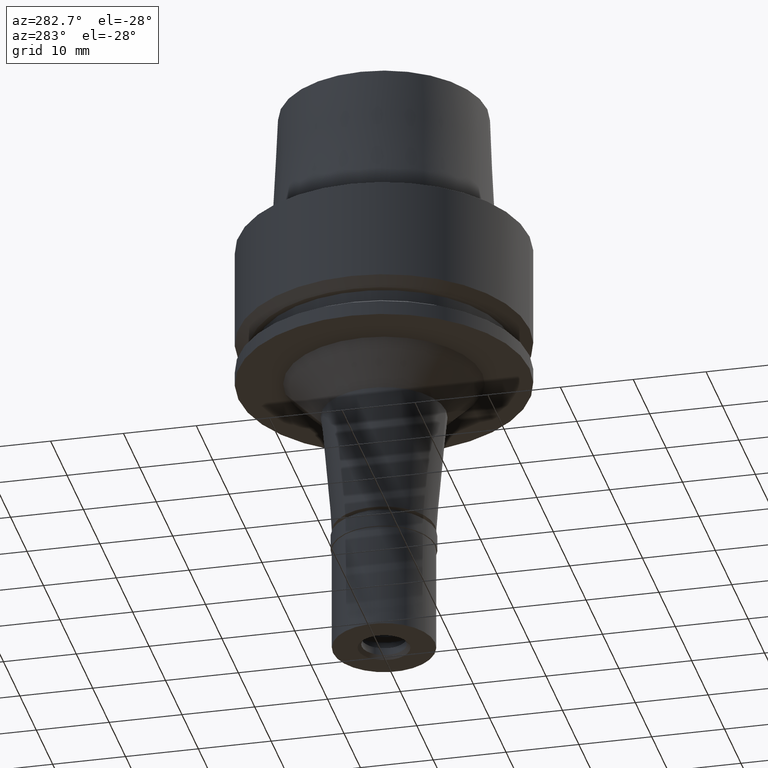
[diagram: clean part render]
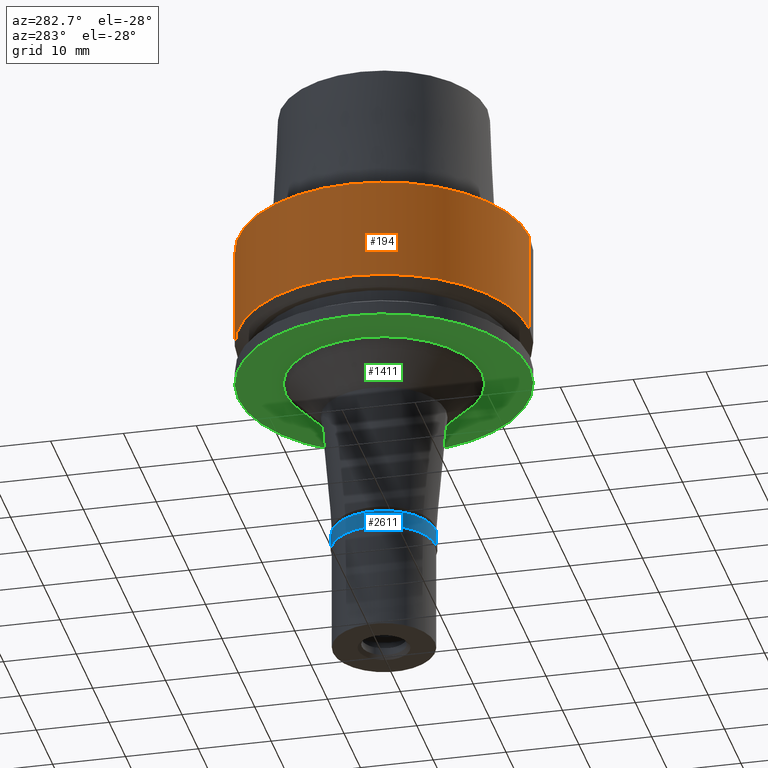
[diagram: same view with three faces highlighted in distinct colors, each labeled with its STEP entity id]
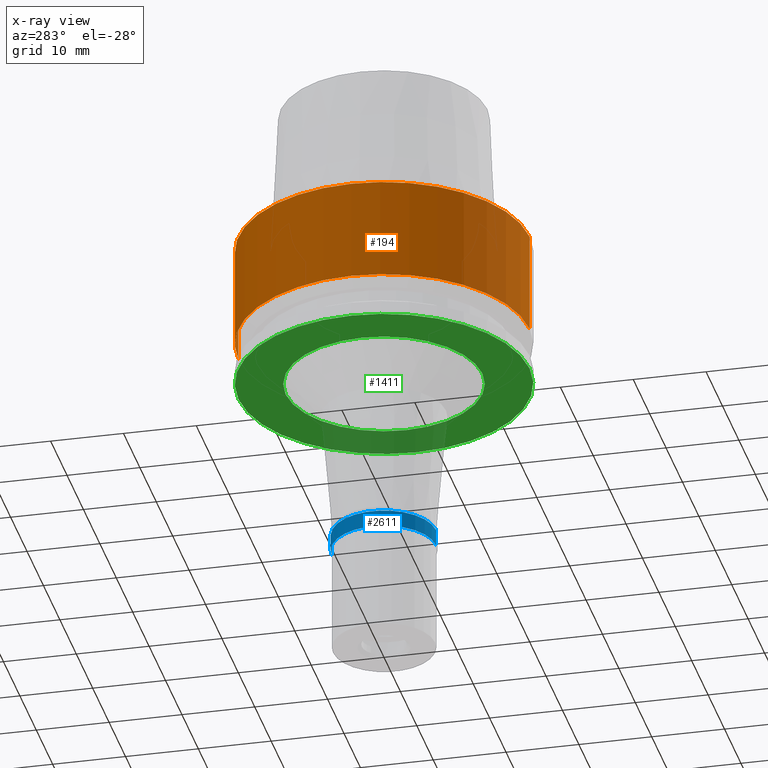
[diagram: x-ray of the same camera — body ghosted, the three highlighted faces saturated]
A machine part, auxiliary view with three faces highlighted in distinct colors.
The next image is the same camera in x-ray (body ghosted, the three faces saturated) — at least one of them is partly hidden behind the body in this view.
Their STEP definitions:

[orange] entity #194 — the highlighted cylindrical surface (partial cylindrical patch) has radius 20 mm, axis along (0, 0, 1).
#26 = DIRECTION ( 'NONE',  ( 0.0000000000000000000, 1.000000000000000000, 0.0000000000000000000 ) ) ;
#112 = LINE ( 'NONE', #907, #728 ) ;
#121 = LINE ( 'NONE', #2408, #144 ) ;
#144 = VECTOR ( 'NONE', #2426, 1000.000000000000000 ) ;
#181 = EDGE_CURVE ( 'NONE', #1096, #1019, #112, .T. ) ;
#194 = ADVANCED_FACE ( 'NONE', ( #685 ), #480, .T. ) ;
#330 = EDGE_CURVE ( 'NONE', #2124, #1096, #602, .T. ) ;
#343 = DIRECTION ( 'NONE',  ( 0.0000000000000000000, 1.000000000000000000, 0.0000000000000000000 ) ) ;
#480 = CYLINDRICAL_SURFACE ( 'NONE', #1264, 20.00000000000000000 ) ;
#517 = VERTEX_POINT ( 'NONE', #807 ) ;
#602 = CIRCLE ( 'NONE', #2467, 20.00000000000000000 ) ;
#685 = FACE_OUTER_BOUND ( 'NONE', #1997, .T. ) ;
#728 = VECTOR ( 'NONE', #1729, 1000.000000000000000 ) ;
#798 = DIRECTION ( 'NONE',  ( 0.0000000000000000000, 0.0000000000000000000, 1.000000000000000000 ) ) ;
#807 = CARTESIAN_POINT ( 'NONE',  ( 0.0000000000000000000, -20.00000000000000000, -13.97927405538000123 ) ) ;
#871 = CARTESIAN_POINT ( 'NONE',  ( 0.0000000000000000000, -20.00000000000000000, 4.973799150320999175E-14 ) ) ;
#907 = CARTESIAN_POINT ( 'NONE',  ( 0.0000000000000000000, 20.00000000000000000, 2.842170943039999687E-14 ) ) ;
#948 = CARTESIAN_POINT ( 'NONE',  ( 0.0000000000000000000, 20.00000000000000000, -13.97927405538000123 ) ) ;
#972 = CARTESIAN_POINT ( 'NONE',  ( 0.0000000000000000000, 0.0000000000000000000, -59.79999999999999716 ) ) ;
#1019 = VERTEX_POINT ( 'NONE', #948 ) ;
#1096 = VERTEX_POINT ( 'NONE', #2164 ) ;
#1159 = EDGE_CURVE ( 'NONE', #1019, #517, #2449, .T. ) ;
#1185 = ORIENTED_EDGE ( 'NONE', *, *, #330, .T. ) ;
#1189 = ORIENTED_EDGE ( 'NONE', *, *, #181, .T. ) ;
#1193 = DIRECTION ( 'NONE',  ( 0.0000000000000000000, 0.0000000000000000000, 1.000000000000000000 ) ) ;
#1264 = AXIS2_PLACEMENT_3D ( 'NONE', #972, #1193, #343 ) ;
#1360 = DIRECTION ( 'NONE',  ( 0.0000000000000000000, -1.000000000000000000, 0.0000000000000000000 ) ) ;
#1370 = ORIENTED_EDGE ( 'NONE', *, *, #1159, .T. ) ;
#1477 = EDGE_CURVE ( 'NONE', #2124, #517, #121, .T. ) ;
#1500 = AXIS2_PLACEMENT_3D ( 'NONE', #2316, #798, #26 ) ;
#1537 = CARTESIAN_POINT ( 'NONE',  ( 0.0000000000000000000, 0.0000000000000000000, 4.973799150320999175E-14 ) ) ;
#1729 = DIRECTION ( 'NONE',  ( 0.0000000000000000000, 2.439758400998999725E-14, -1.000000000000000000 ) ) ;
#1785 = DIRECTION ( 'NONE',  ( 0.0000000000000000000, 0.0000000000000000000, -1.000000000000000000 ) ) ;
#1997 = EDGE_LOOP ( 'NONE', ( #1370, #2157, #1185, #1189 ) ) ;
#2124 = VERTEX_POINT ( 'NONE', #871 ) ;
#2157 = ORIENTED_EDGE ( 'NONE', *, *, #1477, .F. ) ;
#2164 = CARTESIAN_POINT ( 'NONE',  ( 0.0000000000000000000, 20.00000000000000000, 4.973799150320999175E-14 ) ) ;
#2316 = CARTESIAN_POINT ( 'NONE',  ( 0.0000000000000000000, 0.0000000000000000000, -13.97927405538000123 ) ) ;
#2408 = CARTESIAN_POINT ( 'NONE',  ( 0.0000000000000000000, -20.00000000000000000, 2.842170943039999687E-14 ) ) ;
#2426 = DIRECTION ( 'NONE',  ( 0.0000000000000000000, -2.439758400998999725E-14, -1.000000000000000000 ) ) ;
#2449 = CIRCLE ( 'NONE', #1500, 20.00000000000000000 ) ;
#2467 = AXIS2_PLACEMENT_3D ( 'NONE', #1537, #1785, #1360 ) ;

[blue] entity #2611 — the highlighted cylindrical surface (partial cylindrical patch) has radius 7.15 mm, axis along (0, 0, 1).
#1 = DIRECTION ( 'NONE',  ( 0.0000000000000000000, 0.0000000000000000000, 1.000000000000000000 ) ) ;
#214 = ORIENTED_EDGE ( 'NONE', *, *, #1265, .T. ) ;
#282 = CARTESIAN_POINT ( 'NONE',  ( 0.0000000000000000000, 7.150000000000000355, 1.776356839399999922E-14 ) ) ;
#303 = DIRECTION ( 'NONE',  ( 0.0000000000000000000, 0.0000000000000000000, -1.000000000000000000 ) ) ;
#359 = CARTESIAN_POINT ( 'NONE',  ( 0.0000000000000000000, 7.150000000000000355, -2.299999999999999822 ) ) ;
#456 = ORIENTED_EDGE ( 'NONE', *, *, #2432, .T. ) ;
#539 = DIRECTION ( 'NONE',  ( 0.0000000000000000000, 0.0000000000000000000, -1.000000000000000000 ) ) ;
#574 = FACE_OUTER_BOUND ( 'NONE', #2644, .T. ) ;
#582 = DIRECTION ( 'NONE',  ( 0.0000000000000000000, -1.000000000000000000, 0.0000000000000000000 ) ) ;
#601 = DIRECTION ( 'NONE',  ( 0.0000000000000000000, 0.0000000000000000000, -1.000000000000000000 ) ) ;
#741 = VERTEX_POINT ( 'NONE', #359 ) ;
#793 = ORIENTED_EDGE ( 'NONE', *, *, #2389, .F. ) ;
#827 = CARTESIAN_POINT ( 'NONE',  ( 0.0000000000000000000, 0.0000000000000000000, 1.776356839399999922E-14 ) ) ;
#881 = CARTESIAN_POINT ( 'NONE',  ( 0.0000000000000000000, 0.0000000000000000000, -17.85000000000000142 ) ) ;
#946 = AXIS2_PLACEMENT_3D ( 'NONE', #1837, #2009, #2257 ) ;
#1074 = AXIS2_PLACEMENT_3D ( 'NONE', #827, #601, #582 ) ;
#1163 = VECTOR ( 'NONE', #303, 1000.000000000000000 ) ;
#1265 = EDGE_CURVE ( 'NONE', #2447, #1348, #2242, .T. ) ;
#1348 = VERTEX_POINT ( 'NONE', #282 ) ;
#1467 = CIRCLE ( 'NONE', #946, 7.150000000000000355 ) ;
#1508 = AXIS2_PLACEMENT_3D ( 'NONE', #881, #1, #1694 ) ;
#1585 = LINE ( 'NONE', #2234, #1981 ) ;
#1694 = DIRECTION ( 'NONE',  ( 0.0000000000000000000, 1.000000000000000000, 0.0000000000000000000 ) ) ;
#1837 = CARTESIAN_POINT ( 'NONE',  ( 0.0000000000000000000, 0.0000000000000000000, -2.299999999999999822 ) ) ;
#1981 = VECTOR ( 'NONE', #539, 1000.000000000000000 ) ;
#2004 = LINE ( 'NONE', #2579, #1163 ) ;
#2009 = DIRECTION ( 'NONE',  ( 0.0000000000000000000, 0.0000000000000000000, 1.000000000000000000 ) ) ;
#2036 = CYLINDRICAL_SURFACE ( 'NONE', #1508, 7.150000000000000355 ) ;
#2228 = ORIENTED_EDGE ( 'NONE', *, *, #2312, .T. ) ;
#2234 = CARTESIAN_POINT ( 'NONE',  ( 0.0000000000000000000, 7.150000000000000355, 0.0000000000000000000 ) ) ;
#2242 = CIRCLE ( 'NONE', #1074, 7.150000000000000355 ) ;
#2257 = DIRECTION ( 'NONE',  ( 0.0000000000000000000, 1.000000000000000000, 0.0000000000000000000 ) ) ;
#2312 = EDGE_CURVE ( 'NONE', #1348, #741, #1585, .T. ) ;
#2327 = VERTEX_POINT ( 'NONE', #2622 ) ;
#2389 = EDGE_CURVE ( 'NONE', #2447, #2327, #2004, .T. ) ;
#2432 = EDGE_CURVE ( 'NONE', #741, #2327, #1467, .T. ) ;
#2438 = CARTESIAN_POINT ( 'NONE',  ( 0.0000000000000000000, -7.150000000000000355, 1.776356839399999922E-14 ) ) ;
#2447 = VERTEX_POINT ( 'NONE', #2438 ) ;
#2579 = CARTESIAN_POINT ( 'NONE',  ( 0.0000000000000000000, -7.150000000000000355, 0.0000000000000000000 ) ) ;
#2611 = ADVANCED_FACE ( 'NONE', ( #574 ), #2036, .T. ) ;
#2622 = CARTESIAN_POINT ( 'NONE',  ( 0.0000000000000000000, -7.150000000000000355, -2.299999999999999822 ) ) ;
#2644 = EDGE_LOOP ( 'NONE', ( #456, #793, #214, #2228 ) ) ;

[green] entity #1411 — the highlighted planar face has unit normal (0, 0, 1).
#9 = EDGE_CURVE ( 'NONE', #58, #1566, #1090, .T. ) ;
#15 = CARTESIAN_POINT ( 'NONE',  ( 0.0000000000000000000, 0.0000000000000000000, -20.00000000000000000 ) ) ;
#46 = CIRCLE ( 'NONE', #1250, 13.51355387899999982 ) ;
#58 = VERTEX_POINT ( 'NONE', #417 ) ;
#77 = CARTESIAN_POINT ( 'NONE',  ( 0.0000000000000000000, 20.00000000000000000, -20.00000000000000000 ) ) ;
#269 = CIRCLE ( 'NONE', #2283, 20.00000000000000000 ) ;
#417 = CARTESIAN_POINT ( 'NONE',  ( 0.0000000000000000000, -13.51355387899999982, -20.00000000000000000 ) ) ;
#592 = AXIS2_PLACEMENT_3D ( 'NONE', #1961, #1558, #1141 ) ;
#616 = DIRECTION ( 'NONE',  ( 0.0000000000000000000, 1.000000000000000000, 0.0000000000000000000 ) ) ;
#937 = ORIENTED_EDGE ( 'NONE', *, *, #1660, .F. ) ;
#1090 = CIRCLE ( 'NONE', #1345, 13.51355387899999982 ) ;
#1135 = ORIENTED_EDGE ( 'NONE', *, *, #2329, .F. ) ;
#1136 = EDGE_LOOP ( 'NONE', ( #937, #1135 ) ) ;
#1141 = DIRECTION ( 'NONE',  ( 0.0000000000000000000, -1.000000000000000000, 0.0000000000000000000 ) ) ;
#1152 = VERTEX_POINT ( 'NONE', #2680 ) ;
#1249 = EDGE_CURVE ( 'NONE', #1566, #58, #46, .T. ) ;
#1250 = AXIS2_PLACEMENT_3D ( 'NONE', #1832, #2274, #2652 ) ;
#1345 = AXIS2_PLACEMENT_3D ( 'NONE', #15, #1891, #1692 ) ;
#1389 = VERTEX_POINT ( 'NONE', #77 ) ;
#1411 = ADVANCED_FACE ( 'NONE', ( #1748, #2569 ), #2369, .F. ) ;
#1414 = EDGE_LOOP ( 'NONE', ( #2098, #2549 ) ) ;
#1460 = CARTESIAN_POINT ( 'NONE',  ( 0.0000000000000000000, 0.0000000000000000000, -20.00000000000000000 ) ) ;
#1549 = DIRECTION ( 'NONE',  ( 0.0000000000000000000, 0.0000000000000000000, 1.000000000000000000 ) ) ;
#1558 = DIRECTION ( 'NONE',  ( 0.0000000000000000000, 0.0000000000000000000, 1.000000000000000000 ) ) ;
#1566 = VERTEX_POINT ( 'NONE', #2613 ) ;
#1660 = EDGE_CURVE ( 'NONE', #1389, #1152, #269, .T. ) ;
#1692 = DIRECTION ( 'NONE',  ( 0.0000000000000000000, -1.000000000000000000, 0.0000000000000000000 ) ) ;
#1748 = FACE_OUTER_BOUND ( 'NONE', #1136, .T. ) ;
#1766 = CIRCLE ( 'NONE', #592, 20.00000000000000000 ) ;
#1832 = CARTESIAN_POINT ( 'NONE',  ( 0.0000000000000000000, 0.0000000000000000000, -20.00000000000000000 ) ) ;
#1891 = DIRECTION ( 'NONE',  ( 0.0000000000000000000, 0.0000000000000000000, -1.000000000000000000 ) ) ;
#1961 = CARTESIAN_POINT ( 'NONE',  ( 0.0000000000000000000, 0.0000000000000000000, -20.00000000000000000 ) ) ;
#1982 = DIRECTION ( 'NONE',  ( 1.000000000000000000, 0.0000000000000000000, 0.0000000000000000000 ) ) ;
#2098 = ORIENTED_EDGE ( 'NONE', *, *, #1249, .F. ) ;
#2274 = DIRECTION ( 'NONE',  ( 0.0000000000000000000, 0.0000000000000000000, -1.000000000000000000 ) ) ;
#2283 = AXIS2_PLACEMENT_3D ( 'NONE', #1460, #2476, #616 ) ;
#2329 = EDGE_CURVE ( 'NONE', #1152, #1389, #1766, .T. ) ;
#2332 = CARTESIAN_POINT ( 'NONE',  ( 0.0000000000000000000, 0.0000000000000000000, -20.00000000000000000 ) ) ;
#2369 = PLANE ( 'NONE',  #2532 ) ;
#2476 = DIRECTION ( 'NONE',  ( 0.0000000000000000000, 0.0000000000000000000, 1.000000000000000000 ) ) ;
#2532 = AXIS2_PLACEMENT_3D ( 'NONE', #2332, #1549, #1982 ) ;
#2549 = ORIENTED_EDGE ( 'NONE', *, *, #9, .F. ) ;
#2569 = FACE_BOUND ( 'NONE', #1414, .T. ) ;
#2613 = CARTESIAN_POINT ( 'NONE',  ( 0.0000000000000000000, 13.51355387899999982, -20.00000000000000000 ) ) ;
#2652 = DIRECTION ( 'NONE',  ( 0.0000000000000000000, 1.000000000000000000, 0.0000000000000000000 ) ) ;
#2680 = CARTESIAN_POINT ( 'NONE',  ( 0.0000000000000000000, -20.00000000000000000, -20.00000000000000000 ) ) ;